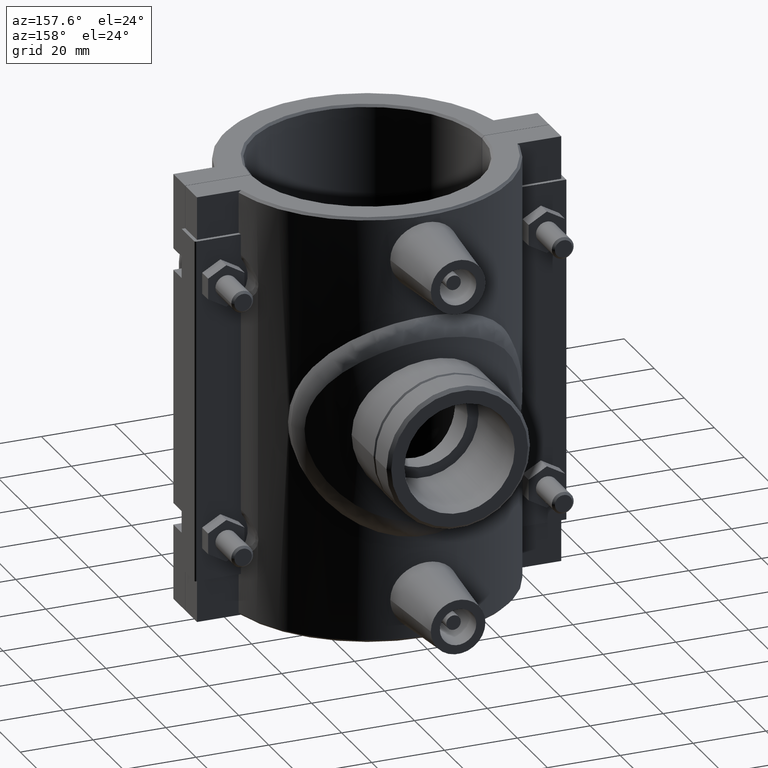
[diagram: clean part render]
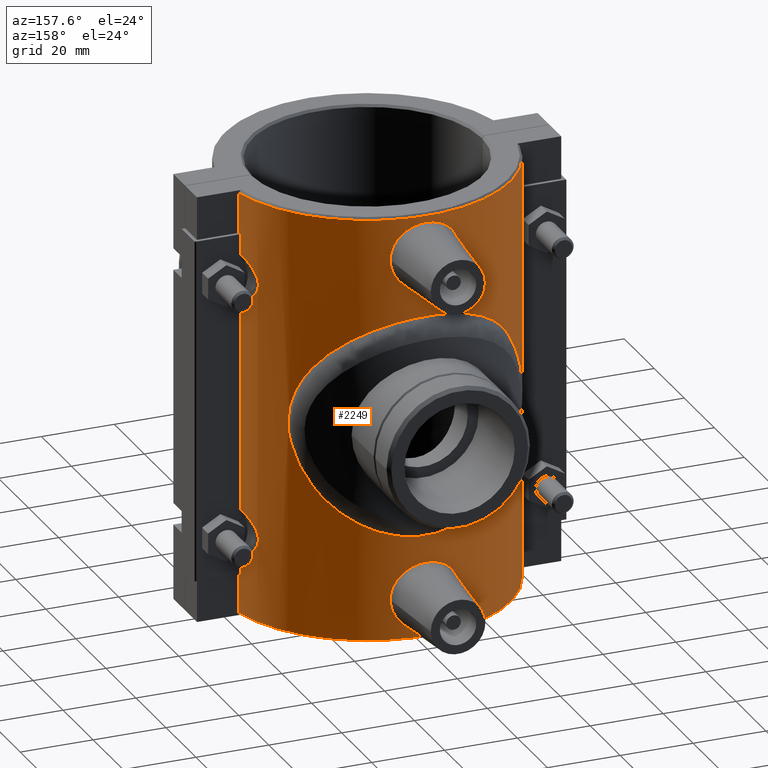
[diagram: same view with one face highlighted and labeled with its STEP entity id]
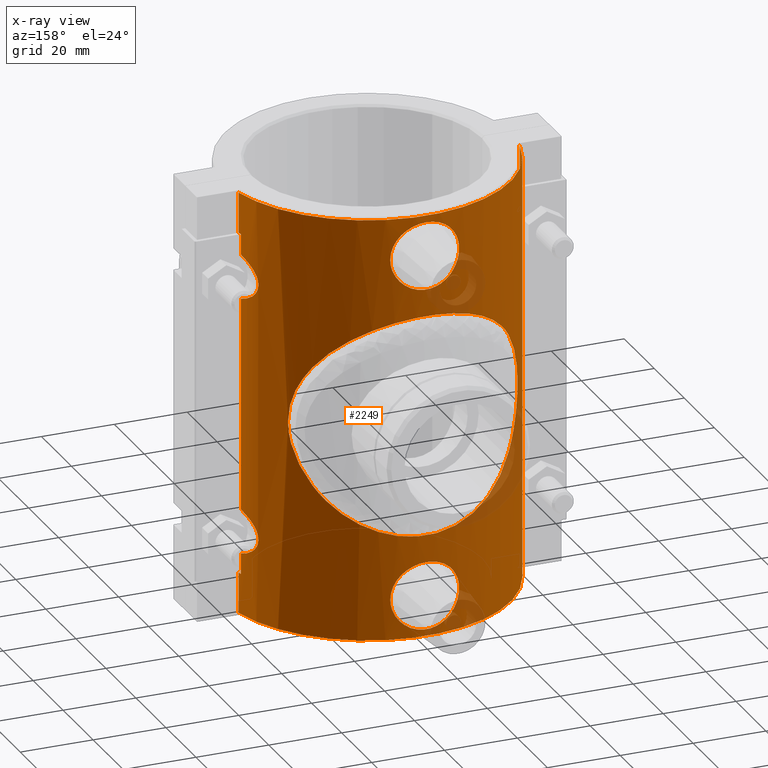
[diagram: x-ray of the same camera — body ghosted, the highlighted face saturated]
A machine part, auxiliary view. The second image highlights one B-rep face of the part: STEP entity #2249.
The next image is the same camera in x-ray: the body ghosted, the highlighted face saturated — about 6% of this face is hidden behind the body in this view.
In plain terms, the highlighted cylindrical surface (partial cylindrical patch) has radius 39.375 mm, axis along (0, 0, 1).
Its self-contained STEP definition (entity closure, byte-faithful):
#65=CYLINDRICAL_SURFACE('',#2409,39.375);
#104=FACE_BOUND('',#374,.T.);
#105=FACE_BOUND('',#375,.T.);
#106=FACE_BOUND('',#376,.T.);
#142=B_SPLINE_CURVE_WITH_KNOTS('',3,(#3314,#3315,#3316,#3317,#3318,#3319,
#3320,#3321,#3322,#3323),.UNSPECIFIED.,.F.,.F.,(4,1,1,1,1,1,1,4),(-2.23679704661286,
-1.96871094438914,-1.70062484216541,-1.43253873994169,-1.16445263771797,
-0.896366535494243,-0.628280433270519,-0.360194331046795),.UNSPECIFIED.);
#144=B_SPLINE_CURVE_WITH_KNOTS('',3,(#3383,#3384,#3385,#3386,#3387,#3388,
#3389,#3390,#3391,#3392),.UNSPECIFIED.,.F.,.F.,(4,1,1,1,1,1,1,4),(-2.23679704543051,
-1.96871094329826,-1.70062484116601,-1.43253873903376,-1.16445263690152,
-0.896366534769269,-0.628280432637021,-0.360194330504774),.UNSPECIFIED.);
#150=B_SPLINE_CURVE_WITH_KNOTS('',3,(#3587,#3588,#3589,#3590,#3591,#3592,
#3593,#3594,#3595,#3596),.UNSPECIFIED.,.F.,.F.,(4,1,1,1,1,1,1,4),(-2.23609285524702,
-1.96800676434559,-1.69992067344417,-1.43183458254275,-1.16374849164133,
-0.895662400739906,-0.627576309838484,-0.359490218937062),.UNSPECIFIED.);
#151=B_SPLINE_CURVE_WITH_KNOTS('',3,(#3641,#3642,#3643,#3644,#3645,#3646,
#3647,#3648,#3649,#3650,#3651,#3652,#3653,#3654,#3655,#3656,#3657,#3658,
#3659,#3660,#3661,#3662,#3663,#3664,#3665,#3666,#3667,#3668,#3669,#3670,
#3671,#3672,#3673,#3674),.UNSPECIFIED.,.T.,.F.,(4,2,2,2,2,2,2,2,2,2,2,2,
2,2,2,2,4),(0.,0.356014998471949,0.712029996943897,1.06709419230473,1.42215838766557,
1.7772225830264,2.13228677838723,2.48830177685918,2.84431677533113,3.20033177380308,
3.55634677227503,3.91141096763586,4.2664751629967,4.62153935835753,4.97660355371836,
5.33261855219031,5.68863355066226),.UNSPECIFIED.);
#152=B_SPLINE_CURVE_WITH_KNOTS('',3,(#3693,#3694,#3695,#3696,#3697,#3698,
#3699,#3700,#3701,#3702,#3703,#3704,#3705,#3706,#3707,#3708,#3709,#3710,
#3711,#3712,#3713,#3714,#3715,#3716,#3717,#3718,#3719,#3720,#3721,#3722,
#3723,#3724,#3725,#3726),.UNSPECIFIED.,.T.,.F.,(4,2,2,2,2,2,2,2,2,2,2,2,
2,2,2,2,4),(0.,0.356014998471948,0.712029996943897,1.06709419230473,1.42215838766556,
1.7772225830264,2.13228677838723,2.48830177685918,2.84431677533113,3.20033177380308,
3.55634677227503,3.91141096763586,4.2664751629967,4.62153935835753,4.97660355371836,
5.33261855219031,5.68863355066226),.UNSPECIFIED.);
#153=B_SPLINE_CURVE_WITH_KNOTS('',3,(#3755,#3756,#3757,#3758,#3759,#3760,
#3761,#3762,#3763,#3764),.UNSPECIFIED.,.F.,.F.,(4,1,1,1,1,1,1,4),(-2.23679704488359,
-1.96871094279365,-1.70062484070371,-1.43253873861376,-1.16445263652382,
-0.896366534433878,-0.628280432343935,-0.360194330253992),.UNSPECIFIED.);
#154=B_SPLINE_CURVE_WITH_KNOTS('',3,(#3772,#3773,#3774,#3775,#3776,#3777,
#3778,#3779),.UNSPECIFIED.,.F.,.F.,(4,2,2,4),(0.,0.645981179518012,1.29196235903602,
1.76864767389931),.UNSPECIFIED.);
#155=B_SPLINE_CURVE_WITH_KNOTS('',3,(#3781,#3782,#3783,#3784,#3785,#3786,
#3787,#3788,#3789,#3790,#3791,#3792,#3793,#3794,#3795,#3796,#3797,#3798,
#3799,#3800),.UNSPECIFIED.,.F.,.F.,(4,2,2,2,2,2,2,2,2,4),(0.,1.16348620632321,
2.26330441970973,2.8075191023437,3.13775493906589,3.43652113412912,3.82240357718107,
4.56678057629902,5.42160531668723,6.41168342017933),.UNSPECIFIED.);
#156=B_SPLINE_CURVE_WITH_KNOTS('',3,(#3802,#3803,#3804,#3805,#3806,#3807,
#3808,#3809,#3810,#3811,#3812,#3813,#3814,#3815),.UNSPECIFIED.,.F.,.F.,
(4,2,2,2,2,2,4),(8.40632199688605,8.88300731174924,9.52898849126725,10.1749696707853,
10.8209508503033,11.4669320298213,11.9436173446845),.UNSPECIFIED.);
#157=B_SPLINE_CURVE_WITH_KNOTS('',3,(#3817,#3818,#3819,#3820,#3821,#3822,
#3823,#3824,#3825,#3826,#3827,#3828,#3829,#3830,#3831,#3832,#3833,#3834,
#3835,#3836),.UNSPECIFIED.,.F.,.F.,(4,2,2,2,2,2,2,2,2,4),(0.,1.16349116454586,
2.26325169019806,2.80758392138209,3.13778661780516,3.43657147133626,3.82241099950025,
4.5667290381499,5.42156965460748,6.41168233159869),.UNSPECIFIED.);
#158=B_SPLINE_CURVE_WITH_KNOTS('',3,(#3837,#3838,#3839,#3840,#3841,#3842,
#3843,#3844),.UNSPECIFIED.,.F.,.F.,(4,2,2,4),(18.5812916676713,19.0579769825345,
19.7039581620525,20.3499393415705),.UNSPECIFIED.);
#218=FACE_OUTER_BOUND('',#373,.T.);
#373=EDGE_LOOP('',(#1717,#1718,#1719,#1720,#1721,#1722,#1723,#1724,#1725,
#1726,#1727,#1728,#1729,#1730,#1731,#1732,#1733,#1734,#1735,#1736));
#374=EDGE_LOOP('',(#1737));
#375=EDGE_LOOP('',(#1738));
#376=EDGE_LOOP('',(#1739,#1740,#1741,#1742,#1743));
#503=LINE('',#3184,#694);
#505=LINE('',#3187,#696);
#506=LINE('',#3207,#697);
#527=LINE('',#3331,#718);
#545=LINE('',#3434,#736);
#546=LINE('',#3454,#737);
#547=LINE('',#3474,#738);
#573=LINE('',#3530,#764);
#599=LINE('',#3766,#790);
#600=LINE('',#3769,#791);
#694=VECTOR('',#2568,5.66749808671728);
#696=VECTOR('',#2570,5.66749808671728);
#697=VECTOR('',#2573,58.5349961734345);
#718=VECTOR('',#2606,11.17);
#736=VECTOR('',#2646,5.66749808671728);
#737=VECTOR('',#2649,58.5349961734345);
#738=VECTOR('',#2652,5.66749808671728);
#764=VECTOR('',#2692,11.17);
#790=VECTOR('',#2800,11.17);
#791=VECTOR('',#2803,11.17);
#875=CIRCLE('',#2339,39.375);
#876=CIRCLE('',#2341,39.375);
#883=CIRCLE('',#2364,39.375);
#884=CIRCLE('',#2367,39.375);
#897=CIRCLE('',#2410,39.375);
#898=CIRCLE('',#2411,39.375);
#953=VERTEX_POINT('',#3157);
#954=VERTEX_POINT('',#3158);
#959=VERTEX_POINT('',#3170);
#960=VERTEX_POINT('',#3171);
#965=VERTEX_POINT('',#3183);
#966=VERTEX_POINT('',#3186);
#969=VERTEX_POINT('',#3198);
#970=VERTEX_POINT('',#3206);
#990=VERTEX_POINT('',#3327);
#1003=VERTEX_POINT('',#3431);
#1004=VERTEX_POINT('',#3433);
#1007=VERTEX_POINT('',#3445);
#1008=VERTEX_POINT('',#3453);
#1011=VERTEX_POINT('',#3465);
#1012=VERTEX_POINT('',#3473);
#1028=VERTEX_POINT('',#3507);
#1030=VERTEX_POINT('',#3515);
#1035=VERTEX_POINT('',#3529);
#1050=VERTEX_POINT('',#3640);
#1056=VERTEX_POINT('',#3692);
#1063=VERTEX_POINT('',#3765);
#1064=VERTEX_POINT('',#3767);
#1065=VERTEX_POINT('',#3770);
#1066=VERTEX_POINT('',#3771);
#1067=VERTEX_POINT('',#3780);
#1068=VERTEX_POINT('',#3801);
#1069=VERTEX_POINT('',#3816);
#1169=EDGE_CURVE('',#953,#954,#875,.T.);
#1175=EDGE_CURVE('',#959,#960,#876,.T.);
#1181=EDGE_CURVE('',#954,#965,#503,.T.);
#1183=EDGE_CURVE('',#966,#959,#505,.T.);
#1187=EDGE_CURVE('',#970,#969,#506,.T.);
#1211=EDGE_CURVE('',#970,#965,#142,.T.);
#1214=EDGE_CURVE('',#990,#960,#527,.T.);
#1216=EDGE_CURVE('',#966,#969,#144,.T.);
#1236=EDGE_CURVE('',#1004,#1003,#545,.T.);
#1240=EDGE_CURVE('',#1008,#1007,#546,.T.);
#1244=EDGE_CURVE('',#1012,#1011,#547,.T.);
#1262=EDGE_CURVE('',#1003,#1028,#883,.T.);
#1265=EDGE_CURVE('',#1030,#1012,#884,.T.);
#1272=EDGE_CURVE('',#1035,#1030,#573,.T.);
#1276=EDGE_CURVE('',#1008,#1011,#150,.T.);
#1296=EDGE_CURVE('',#1050,#1050,#151,.T.);
#1302=EDGE_CURVE('',#1056,#1056,#152,.T.);
#1315=EDGE_CURVE('',#1035,#990,#897,.T.);
#1316=EDGE_CURVE('',#1004,#1007,#153,.T.);
#1317=EDGE_CURVE('',#1028,#1063,#599,.T.);
#1318=EDGE_CURVE('',#1064,#1063,#898,.T.);
#1319=EDGE_CURVE('',#953,#1064,#600,.T.);
#1320=EDGE_CURVE('',#1065,#1066,#154,.T.);
#1321=EDGE_CURVE('',#1066,#1067,#155,.T.);
#1322=EDGE_CURVE('',#1067,#1068,#156,.T.);
#1323=EDGE_CURVE('',#1068,#1069,#157,.T.);
#1324=EDGE_CURVE('',#1069,#1065,#158,.T.);
#1717=ORIENTED_EDGE('',*,*,#1181,.T.);
#1718=ORIENTED_EDGE('',*,*,#1211,.F.);
#1719=ORIENTED_EDGE('',*,*,#1187,.T.);
#1720=ORIENTED_EDGE('',*,*,#1216,.F.);
#1721=ORIENTED_EDGE('',*,*,#1183,.T.);
#1722=ORIENTED_EDGE('',*,*,#1175,.T.);
#1723=ORIENTED_EDGE('',*,*,#1214,.F.);
#1724=ORIENTED_EDGE('',*,*,#1315,.F.);
#1725=ORIENTED_EDGE('',*,*,#1272,.T.);
#1726=ORIENTED_EDGE('',*,*,#1265,.T.);
#1727=ORIENTED_EDGE('',*,*,#1244,.T.);
#1728=ORIENTED_EDGE('',*,*,#1276,.F.);
#1729=ORIENTED_EDGE('',*,*,#1240,.T.);
#1730=ORIENTED_EDGE('',*,*,#1316,.F.);
#1731=ORIENTED_EDGE('',*,*,#1236,.T.);
#1732=ORIENTED_EDGE('',*,*,#1262,.T.);
#1733=ORIENTED_EDGE('',*,*,#1317,.T.);
#1734=ORIENTED_EDGE('',*,*,#1318,.F.);
#1735=ORIENTED_EDGE('',*,*,#1319,.F.);
#1736=ORIENTED_EDGE('',*,*,#1169,.T.);
#1737=ORIENTED_EDGE('',*,*,#1296,.T.);
#1738=ORIENTED_EDGE('',*,*,#1302,.T.);
#1739=ORIENTED_EDGE('',*,*,#1320,.T.);
#1740=ORIENTED_EDGE('',*,*,#1321,.T.);
#1741=ORIENTED_EDGE('',*,*,#1322,.T.);
#1742=ORIENTED_EDGE('',*,*,#1323,.T.);
#1743=ORIENTED_EDGE('',*,*,#1324,.T.);
#2249=ADVANCED_FACE('',(#218,#104,#105,#106),#65,.T.);
#2339=AXIS2_PLACEMENT_3D('',#3159,#2550,#2551);
#2341=AXIS2_PLACEMENT_3D('',#3172,#2559,#2560);
#2364=AXIS2_PLACEMENT_3D('',#3509,#2672,#2673);
#2367=AXIS2_PLACEMENT_3D('',#3516,#2680,#2681);
#2409=AXIS2_PLACEMENT_3D('',#3753,#2796,#2797);
#2410=AXIS2_PLACEMENT_3D('',#3754,#2798,#2799);
#2411=AXIS2_PLACEMENT_3D('',#3768,#2801,#2802);
#2550=DIRECTION('center_axis',(0.,0.,-1.));
#2551=DIRECTION('ref_axis',(1.,0.,0.));
#2559=DIRECTION('center_axis',(0.,0.,1.));
#2560=DIRECTION('ref_axis',(1.,0.,0.));
#2568=DIRECTION('',(0.,0.,1.));
#2570=DIRECTION('',(0.,0.,1.));
#2573=DIRECTION('',(0.,0.,1.));
#2606=DIRECTION('',(0.,0.,-1.));
#2646=DIRECTION('',(0.,0.,-1.));
#2649=DIRECTION('',(0.,0.,-1.));
#2652=DIRECTION('',(0.,0.,-1.));
#2672=DIRECTION('center_axis',(0.,0.,-1.));
#2673=DIRECTION('ref_axis',(1.,0.,0.));
#2680=DIRECTION('center_axis',(0.,0.,1.));
#2681=DIRECTION('ref_axis',(1.,0.,0.));
#2692=DIRECTION('',(0.,0.,-1.));
#2796=DIRECTION('center_axis',(0.,0.,1.));
#2797=DIRECTION('ref_axis',(1.,0.,0.));
#2798=DIRECTION('center_axis',(0.,0.,1.));
#2799=DIRECTION('ref_axis',(1.,0.,0.));
#2800=DIRECTION('',(0.,0.,-1.));
#2801=DIRECTION('center_axis',(0.,0.,-1.));
#2802=DIRECTION('ref_axis',(1.,0.,0.));
#2803=DIRECTION('',(0.,0.,-1.));
#3157=CARTESIAN_POINT('',(-38.5794634488351,7.87499999999999,-47.2));
#3158=CARTESIAN_POINT('',(-38.3617648186316,8.87499999999999,-47.2));
#3159=CARTESIAN_POINT('Origin',(0.,0.,-47.2));
#3170=CARTESIAN_POINT('',(-38.3617648186316,8.87499999999999,47.2));
#3171=CARTESIAN_POINT('',(-38.5794634488351,7.87499999999999,47.2));
#3172=CARTESIAN_POINT('Origin',(0.,0.,47.2));
#3183=CARTESIAN_POINT('',(-38.3617648186318,8.87499999999956,-41.5325019132827));
#3184=CARTESIAN_POINT('',(-38.3617648186316,8.87499999999999,0.));
#3186=CARTESIAN_POINT('',(-38.3617648186318,8.87499999999956,41.5325019132827));
#3187=CARTESIAN_POINT('',(-38.3617648186316,8.87499999999999,0.));
#3198=CARTESIAN_POINT('',(-38.3617648186318,8.87499999999956,29.2674980867173));
#3206=CARTESIAN_POINT('',(-38.3617648186318,8.87499999999956,-29.2674980867173));
#3207=CARTESIAN_POINT('',(-38.3617648186316,8.87499999999999,0.));
#3314=CARTESIAN_POINT('Ctrl Pts',(-38.3617648186317,8.8749999999995,-29.2674980867174));
#3315=CARTESIAN_POINT('Ctrl Pts',(-38.1532387728328,9.7763439016894,-29.5398859696479));
#3316=CARTESIAN_POINT('Ctrl Pts',(-37.6795406994699,11.5271730571094,-30.2103196623145));
#3317=CARTESIAN_POINT('Ctrl Pts',(-36.8950726308391,13.8148468887016,-31.7241798095908));
#3318=CARTESIAN_POINT('Ctrl Pts',(-36.2284522761401,15.4295263626613,-33.9879877213974));
#3319=CARTESIAN_POINT('Ctrl Pts',(-36.2245338176189,15.4362747750041,-36.8171381414192));
#3320=CARTESIAN_POINT('Ctrl Pts',(-36.8917757079543,13.8204970105827,-39.0742706705837));
#3321=CARTESIAN_POINT('Ctrl Pts',(-37.6777684709211,11.5302183310091,-40.5894169961475));
#3322=CARTESIAN_POINT('Ctrl Pts',(-38.1532387728328,9.77634390168942,-41.2601140303521));
#3323=CARTESIAN_POINT('Ctrl Pts',(-38.3617648186317,8.8749999999995,-41.5325019132826));
#3327=CARTESIAN_POINT('',(-38.5794634488351,7.875,58.37));
#3331=CARTESIAN_POINT('',(-38.5794634488351,7.875,0.));
#3383=CARTESIAN_POINT('Ctrl Pts',(-38.3617648186317,8.8749999999995,41.5325019132826));
#3384=CARTESIAN_POINT('Ctrl Pts',(-38.1532387763912,9.77634388630819,41.2601140350003));
#3385=CARTESIAN_POINT('Ctrl Pts',(-37.6777684672854,11.5302183437461,40.5894169905642));
#3386=CARTESIAN_POINT('Ctrl Pts',(-36.8917757065733,13.8204970134078,39.0742706672572));
#3387=CARTESIAN_POINT('Ctrl Pts',(-36.2245338174657,15.4362747756134,36.8171381407191));
#3388=CARTESIAN_POINT('Ctrl Pts',(-36.228452275591,15.4295263642557,33.987987726037));
#3389=CARTESIAN_POINT('Ctrl Pts',(-36.8950726292815,13.8148468918939,31.7241798133507));
#3390=CARTESIAN_POINT('Ctrl Pts',(-37.679540696668,11.5271730681516,30.2103196664156));
#3391=CARTESIAN_POINT('Ctrl Pts',(-38.1532387763912,9.77634388630819,29.5398859649997));
#3392=CARTESIAN_POINT('Ctrl Pts',(-38.3617648186317,8.8749999999995,29.2674980867174));
#3431=CARTESIAN_POINT('',(38.3617648186316,8.87499999999999,-47.2));
#3433=CARTESIAN_POINT('',(38.3617648186318,8.87499999999956,-41.5325019132827));
#3434=CARTESIAN_POINT('',(38.3617648186316,8.87499999999999,0.));
#3445=CARTESIAN_POINT('',(38.3617648186318,8.87499999999956,-29.2674980867173));
#3453=CARTESIAN_POINT('',(38.3617648186318,8.87499999999956,29.2674980867173));
#3454=CARTESIAN_POINT('',(38.3617648186316,8.87499999999999,0.));
#3465=CARTESIAN_POINT('',(38.3617648186318,8.87499999999956,41.5325019132827));
#3473=CARTESIAN_POINT('',(38.3617648186316,8.87499999999999,47.2));
#3474=CARTESIAN_POINT('',(38.3617648186316,8.87499999999999,0.));
#3507=CARTESIAN_POINT('',(38.5794634488351,7.87499999999999,-47.2));
#3509=CARTESIAN_POINT('Origin',(0.,0.,-47.2));
#3515=CARTESIAN_POINT('',(38.5794634488351,7.87499999999999,47.2));
#3516=CARTESIAN_POINT('Origin',(0.,0.,47.2));
#3529=CARTESIAN_POINT('',(38.5794634488351,7.87499999999999,58.37));
#3530=CARTESIAN_POINT('',(38.5794634488351,7.87499999999999,0.));
#3587=CARTESIAN_POINT('Ctrl Pts',(38.3617648186317,8.8749999999995,29.2674980867174));
#3588=CARTESIAN_POINT('Ctrl Pts',(38.1532388333755,9.77634363999648,29.5398858905638));
#3589=CARTESIAN_POINT('Ctrl Pts',(37.6771605191043,11.5312642110856,30.2102998012306));
#3590=CARTESIAN_POINT('Ctrl Pts',(36.8921396789315,13.8198729314372,31.7264222502999));
#3591=CARTESIAN_POINT('Ctrl Pts',(36.2246883133286,15.4360080026379,33.9828098704173));
#3592=CARTESIAN_POINT('Ctrl Pts',(36.2285403039292,15.4293752376368,36.812145980274));
#3593=CARTESIAN_POINT('Ctrl Pts',(36.8951278874751,13.8147515853218,39.0758201964971));
#3594=CARTESIAN_POINT('Ctrl Pts',(37.6795661046194,11.5271296631764,40.5897123228409));
#3595=CARTESIAN_POINT('Ctrl Pts',(38.1532388333755,9.77634363999647,41.2601141094362));
#3596=CARTESIAN_POINT('Ctrl Pts',(38.3617648186317,8.87499999999951,41.5325019132826));
#3640=CARTESIAN_POINT('',(9.44885677958251,38.2244650787809,47.2));
#3641=CARTESIAN_POINT('Ctrl Pts',(-9.44885677958251,38.2244650787809,47.2));
#3642=CARTESIAN_POINT('Ctrl Pts',(-9.44885677958251,38.2244650787809,46.0132833384269));
#3643=CARTESIAN_POINT('Ctrl Pts',(-9.20641468561252,38.2868444369384,44.752476197349));
#3644=CARTESIAN_POINT('Ctrl Pts',(-8.23143659111838,38.5082325071646,42.443271999074));
#3645=CARTESIAN_POINT('Ctrl Pts',(-7.49923403788687,38.6636599373278,41.3943922368591));
#3646=CARTESIAN_POINT('Ctrl Pts',(-5.8213504145831,38.95157397346,39.7451610866894));
#3647=CARTESIAN_POINT('Ctrl Pts',(-4.76306580802813,39.1031880173406,39.0320549957885));
#3648=CARTESIAN_POINT('Ctrl Pts',(-2.44433362832232,39.3162986767516,38.0852741919757));
#3649=CARTESIAN_POINT('Ctrl Pts',(-1.18354731786945,39.375,37.8518019830149));
#3650=CARTESIAN_POINT('Ctrl Pts',(1.18354731786945,39.375,37.8518019830149));
#3651=CARTESIAN_POINT('Ctrl Pts',(2.44433362832233,39.3162986767516,38.0852741919757));
#3652=CARTESIAN_POINT('Ctrl Pts',(4.76306580802814,39.1031880173406,39.0320549957885));
#3653=CARTESIAN_POINT('Ctrl Pts',(5.8213504145831,38.95157397346,39.7451610866894));
#3654=CARTESIAN_POINT('Ctrl Pts',(7.49923403788688,38.6636599373278,41.3943922368591));
#3655=CARTESIAN_POINT('Ctrl Pts',(8.23143659111838,38.5082325071646,42.443271999074));
#3656=CARTESIAN_POINT('Ctrl Pts',(9.20641468561252,38.2868444369384,44.7524761973491));
#3657=CARTESIAN_POINT('Ctrl Pts',(9.44885677958251,38.2244650787809,46.0132833384269));
#3658=CARTESIAN_POINT('Ctrl Pts',(9.44885677958251,38.2244650787809,48.3867166615732));
#3659=CARTESIAN_POINT('Ctrl Pts',(9.20641468561253,38.2868444369384,49.647523802651));
#3660=CARTESIAN_POINT('Ctrl Pts',(8.23143659111839,38.5082325071646,51.956728000926));
#3661=CARTESIAN_POINT('Ctrl Pts',(7.49923403788688,38.6636599373278,53.0056077631409));
#3662=CARTESIAN_POINT('Ctrl Pts',(5.8213504145831,38.95157397346,54.6548389133106));
#3663=CARTESIAN_POINT('Ctrl Pts',(4.76306580802813,39.1031880173406,55.3679450042115));
#3664=CARTESIAN_POINT('Ctrl Pts',(2.44433362832232,39.3162986767516,56.3147258080244));
#3665=CARTESIAN_POINT('Ctrl Pts',(1.18354731786945,39.375,56.5481980169852));
#3666=CARTESIAN_POINT('Ctrl Pts',(-1.18354731786944,39.375,56.5481980169852));
#3667=CARTESIAN_POINT('Ctrl Pts',(-2.44433362832232,39.3162986767516,56.3147258080244));
#3668=CARTESIAN_POINT('Ctrl Pts',(-4.76306580802813,39.1031880173406,55.3679450042115));
#3669=CARTESIAN_POINT('Ctrl Pts',(-5.8213504145831,38.95157397346,54.6548389133106));
#3670=CARTESIAN_POINT('Ctrl Pts',(-7.49923403788688,38.6636599373278,53.0056077631409));
#3671=CARTESIAN_POINT('Ctrl Pts',(-8.23143659111838,38.5082325071646,51.956728000926));
#3672=CARTESIAN_POINT('Ctrl Pts',(-9.20641468561252,38.2868444369384,49.647523802651));
#3673=CARTESIAN_POINT('Ctrl Pts',(-9.44885677958251,38.2244650787809,48.3867166615732));
#3674=CARTESIAN_POINT('Ctrl Pts',(-9.44885677958251,38.2244650787809,47.2));
#3692=CARTESIAN_POINT('',(9.44885677958251,38.2244650787809,-47.2));
#3693=CARTESIAN_POINT('Ctrl Pts',(9.44885677958251,38.2244650787809,-47.2));
#3694=CARTESIAN_POINT('Ctrl Pts',(9.44885677958251,38.2244650787809,-46.0132833384269));
#3695=CARTESIAN_POINT('Ctrl Pts',(9.20641468561252,38.2868444369384,-44.7524761973491));
#3696=CARTESIAN_POINT('Ctrl Pts',(8.23143659111838,38.5082325071646,-42.443271999074));
#3697=CARTESIAN_POINT('Ctrl Pts',(7.49923403788688,38.6636599373278,-41.3943922368591));
#3698=CARTESIAN_POINT('Ctrl Pts',(5.8213504145831,38.95157397346,-39.7451610866894));
#3699=CARTESIAN_POINT('Ctrl Pts',(4.76306580802814,39.1031880173406,-39.0320549957885));
#3700=CARTESIAN_POINT('Ctrl Pts',(2.44433362832233,39.3162986767516,-38.0852741919757));
#3701=CARTESIAN_POINT('Ctrl Pts',(1.18354731786945,39.375,-37.8518019830149));
#3702=CARTESIAN_POINT('Ctrl Pts',(-1.18354731786945,39.375,-37.8518019830149));
#3703=CARTESIAN_POINT('Ctrl Pts',(-2.44433362832232,39.3162986767516,-38.0852741919757));
#3704=CARTESIAN_POINT('Ctrl Pts',(-4.76306580802814,39.1031880173406,-39.0320549957885));
#3705=CARTESIAN_POINT('Ctrl Pts',(-5.8213504145831,38.95157397346,-39.7451610866894));
#3706=CARTESIAN_POINT('Ctrl Pts',(-7.49923403788688,38.6636599373278,-41.3943922368591));
#3707=CARTESIAN_POINT('Ctrl Pts',(-8.23143659111838,38.5082325071646,-42.443271999074));
#3708=CARTESIAN_POINT('Ctrl Pts',(-9.20641468561252,38.2868444369384,-44.7524761973491));
#3709=CARTESIAN_POINT('Ctrl Pts',(-9.44885677958251,38.2244650787809,-46.0132833384269));
#3710=CARTESIAN_POINT('Ctrl Pts',(-9.44885677958251,38.2244650787809,-48.3867166615732));
#3711=CARTESIAN_POINT('Ctrl Pts',(-9.20641468561252,38.2868444369384,-49.647523802651));
#3712=CARTESIAN_POINT('Ctrl Pts',(-8.23143659111838,38.5082325071646,-51.956728000926));
#3713=CARTESIAN_POINT('Ctrl Pts',(-7.49923403788688,38.6636599373278,-53.0056077631409));
#3714=CARTESIAN_POINT('Ctrl Pts',(-5.8213504145831,38.95157397346,-54.6548389133106));
#3715=CARTESIAN_POINT('Ctrl Pts',(-4.76306580802813,39.1031880173406,-55.3679450042115));
#3716=CARTESIAN_POINT('Ctrl Pts',(-2.44433362832232,39.3162986767516,-56.3147258080244));
#3717=CARTESIAN_POINT('Ctrl Pts',(-1.18354731786945,39.375,-56.5481980169852));
#3718=CARTESIAN_POINT('Ctrl Pts',(1.18354731786944,39.375,-56.5481980169852));
#3719=CARTESIAN_POINT('Ctrl Pts',(2.44433362832232,39.3162986767516,-56.3147258080244));
#3720=CARTESIAN_POINT('Ctrl Pts',(4.76306580802813,39.1031880173406,-55.3679450042115));
#3721=CARTESIAN_POINT('Ctrl Pts',(5.8213504145831,38.95157397346,-54.6548389133106));
#3722=CARTESIAN_POINT('Ctrl Pts',(7.49923403788687,38.6636599373278,-53.0056077631409));
#3723=CARTESIAN_POINT('Ctrl Pts',(8.23143659111838,38.5082325071646,-51.9567280009261));
#3724=CARTESIAN_POINT('Ctrl Pts',(9.20641468561252,38.2868444369384,-49.647523802651));
#3725=CARTESIAN_POINT('Ctrl Pts',(9.44885677958251,38.2244650787809,-48.3867166615732));
#3726=CARTESIAN_POINT('Ctrl Pts',(9.44885677958251,38.2244650787809,-47.2));
#3753=CARTESIAN_POINT('Origin',(0.,0.,0.));
#3754=CARTESIAN_POINT('Origin',(0.,0.,58.37));
#3755=CARTESIAN_POINT('Ctrl Pts',(38.3617648186317,8.8749999999995,-41.5325019132826));
#3756=CARTESIAN_POINT('Ctrl Pts',(38.1532387780374,9.77634387919272,-41.2601140371506));
#3757=CARTESIAN_POINT('Ctrl Pts',(37.6795406953721,11.5271730732592,-40.5896803316875));
#3758=CARTESIAN_POINT('Ctrl Pts',(36.8950726285609,13.8148468933708,-39.07582018491));
#3759=CARTESIAN_POINT('Ctrl Pts',(36.228452275337,15.4295263649932,-36.8120122718165));
#3760=CARTESIAN_POINT('Ctrl Pts',(36.2245338173948,15.4362747758953,-33.9828618596049));
#3761=CARTESIAN_POINT('Ctrl Pts',(36.8917757059344,13.8204970147147,-31.7257293342817));
#3762=CARTESIAN_POINT('Ctrl Pts',(37.6777684656037,11.5302183496378,-30.2105830120185));
#3763=CARTESIAN_POINT('Ctrl Pts',(38.1532387780374,9.7763438791927,-29.5398859628494));
#3764=CARTESIAN_POINT('Ctrl Pts',(38.3617648186317,8.8749999999995,-29.2674980867174));
#3765=CARTESIAN_POINT('',(38.5794634488351,7.87499999999999,-58.37));
#3766=CARTESIAN_POINT('',(38.5794634488351,7.87499999999999,0.));
#3767=CARTESIAN_POINT('',(-38.5794634488351,7.875,-58.37));
#3768=CARTESIAN_POINT('Origin',(0.,0.,-58.37));
#3769=CARTESIAN_POINT('',(-38.5794634488351,7.875,0.));
#3770=CARTESIAN_POINT('',(31.5,23.625,1.11022302462516E-15));
#3771=CARTESIAN_POINT('',(26.9187318609177,28.7362575851486,16.3594582734275));
#3772=CARTESIAN_POINT('Ctrl Pts',(31.5,23.625,1.11022302462516E-15));
#3773=CARTESIAN_POINT('Ctrl Pts',(31.5,23.625,2.15327059839337));
#3774=CARTESIAN_POINT('Ctrl Pts',(31.2780467196378,23.9279039689149,4.28852470908759));
#3775=CARTESIAN_POINT('Ctrl Pts',(30.4259590803895,25.0024359872944,8.42429040913865));
#3776=CARTESIAN_POINT('Ctrl Pts',(29.7960912566457,25.7683869400545,10.4263298110625));
#3777=CARTESIAN_POINT('Ctrl Pts',(28.3914817075653,27.2963547860409,13.7294005441814));
#3778=CARTESIAN_POINT('Ctrl Pts',(27.6974656799735,28.0067775265824,15.0780877955162));
#3779=CARTESIAN_POINT('Ctrl Pts',(26.9187318609177,28.7362575851487,16.3594582734274));
#3780=CARTESIAN_POINT('',(-26.9187318609182,28.7362575851483,16.3594582734267));
#3781=CARTESIAN_POINT('Ctrl Pts',(26.9187318609179,28.7362575851484,16.3594582734271));
#3782=CARTESIAN_POINT('Ctrl Pts',(25.1075197957008,30.4329131702528,19.3397239467736));
#3783=CARTESIAN_POINT('Ctrl Pts',(22.7079269700689,32.3543209201565,22.0194025256257));
#3784=CARTESIAN_POINT('Ctrl Pts',(16.8585127451055,35.7345582435431,26.3505377891985));
#3785=CARTESIAN_POINT('Ctrl Pts',(13.5727981854966,37.1515244484902,27.9776933772116));
#3786=CARTESIAN_POINT('Ctrl Pts',(8.14824236475228,38.5673543153814,29.5742033725196));
#3787=CARTESIAN_POINT('Ctrl Pts',(6.28884869507743,38.9166882570087,29.9589916740709));
#3788=CARTESIAN_POINT('Ctrl Pts',(3.23078689007856,39.2594336804441,30.3354199928792));
#3789=CARTESIAN_POINT('Ctrl Pts',(2.06571963951946,39.3381907417112,30.4213434478583));
#3790=CARTESIAN_POINT('Ctrl Pts',(-0.162960638217514,39.388897656078,30.4767147631299));
#3791=CARTESIAN_POINT('Ctrl Pts',(-1.22186673718899,39.3702309454479,30.456380212008));
#3792=CARTESIAN_POINT('Ctrl Pts',(-3.64020265404604,39.2301366570375,30.3031917510595));
#3793=CARTESIAN_POINT('Ctrl Pts',(-4.9904656479513,39.0806905846304,30.1397223080439));
#3794=CARTESIAN_POINT('Ctrl Pts',(-8.88480487012735,38.4474039383904,29.4395927542055));
#3795=CARTESIAN_POINT('Ctrl Pts',(-11.3373948041858,37.7868769746663,28.7044835331252));
#3796=CARTESIAN_POINT('Ctrl Pts',(-16.2717862212075,35.9655981232211,26.5834644127264));
#3797=CARTESIAN_POINT('Ctrl Pts',(-18.6673322333193,34.7579897946622,25.1330632988056));
#3798=CARTESIAN_POINT('Ctrl Pts',(-23.2305412016014,31.9224858302187,21.4035915009918));
#3799=CARTESIAN_POINT('Ctrl Pts',(-25.2882698095978,30.2635953269834,19.0423081597329));
#3800=CARTESIAN_POINT('Ctrl Pts',(-26.918731860918,28.7362575851484,16.359458273427));
#3801=CARTESIAN_POINT('',(-26.9187318609179,28.7362575851485,-16.3594582734271));
#3802=CARTESIAN_POINT('Ctrl Pts',(-26.9187318609182,28.7362575851482,16.3594582734267));
#3803=CARTESIAN_POINT('Ctrl Pts',(-27.6974656799737,28.0067775265821,15.0780877955157));
#3804=CARTESIAN_POINT('Ctrl Pts',(-28.3914817075654,27.2963547860408,13.7294005441811));
#3805=CARTESIAN_POINT('Ctrl Pts',(-29.7960912566457,25.7683869400545,10.4263298110625));
#3806=CARTESIAN_POINT('Ctrl Pts',(-30.4259590803895,25.0024359872944,8.42429040913865));
#3807=CARTESIAN_POINT('Ctrl Pts',(-31.2780467196378,23.9279039689149,4.2885247090876));
#3808=CARTESIAN_POINT('Ctrl Pts',(-31.5,23.625,2.15327059839337));
#3809=CARTESIAN_POINT('Ctrl Pts',(-31.5,23.625,-2.15327059839337));
#3810=CARTESIAN_POINT('Ctrl Pts',(-31.2780467196378,23.9279039689149,-4.28852470908759));
#3811=CARTESIAN_POINT('Ctrl Pts',(-30.4259590803895,25.0024359872944,-8.42429040913865));
#3812=CARTESIAN_POINT('Ctrl Pts',(-29.7960912566457,25.7683869400545,-10.4263298110625));
#3813=CARTESIAN_POINT('Ctrl Pts',(-28.3914817075654,27.2963547860409,-13.7294005441812));
#3814=CARTESIAN_POINT('Ctrl Pts',(-27.6974656799736,28.0067775265823,-15.078087795516));
#3815=CARTESIAN_POINT('Ctrl Pts',(-26.9187318609179,28.7362575851485,-16.3594582734271));
#3816=CARTESIAN_POINT('',(26.918731860918,28.7362575851484,-16.3594582734269));
#3817=CARTESIAN_POINT('Ctrl Pts',(-26.918731860918,28.7362575851484,-16.359458273427));
#3818=CARTESIAN_POINT('Ctrl Pts',(-25.1075120771798,30.4329204005888,-19.3397366472428));
#3819=CARTESIAN_POINT('Ctrl Pts',(-22.7079065146559,32.3543372428927,-22.0194253529859));
#3820=CARTESIAN_POINT('Ctrl Pts',(-16.8586188511121,35.7344926719116,-26.3504519634409));
#3821=CARTESIAN_POINT('Ctrl Pts',(-13.5730938917071,37.1513950824426,-27.9775437058883));
#3822=CARTESIAN_POINT('Ctrl Pts',(-8.14838074241099,38.567344022301,-29.5741936445018));
#3823=CARTESIAN_POINT('Ctrl Pts',(-6.28858354214404,38.9167516983198,-29.9590617929142));
#3824=CARTESIAN_POINT('Ctrl Pts',(-3.23021290364877,39.2594775455611,-30.33546789998));
#3825=CARTESIAN_POINT('Ctrl Pts',(-2.06526012978407,39.338211388797,-30.4213659997121));
#3826=CARTESIAN_POINT('Ctrl Pts',(0.163370198584181,39.3888977489934,-30.4767148596189));
#3827=CARTESIAN_POINT('Ctrl Pts',(1.22234216716818,39.3702179382464,-30.4563660399506));
#3828=CARTESIAN_POINT('Ctrl Pts',(3.64058862415083,39.2300955199836,-30.303146703312));
#3829=CARTESIAN_POINT('Ctrl Pts',(4.99069907648466,39.0806556011334,-30.1396837147458));
#3830=CARTESIAN_POINT('Ctrl Pts',(8.88468493557873,38.447417700566,-29.4396078094639));
#3831=CARTESIAN_POINT('Ctrl Pts',(11.3370884197295,37.7869572202475,-28.704572043046));
#3832=CARTESIAN_POINT('Ctrl Pts',(16.2713973388486,35.9657793692233,-26.5836811626286));
#3833=CARTESIAN_POINT('Ctrl Pts',(18.6670142642517,34.7581650035448,-25.133282234551));
#3834=CARTESIAN_POINT('Ctrl Pts',(23.2303985669664,31.9226003702732,-21.403755485469));
#3835=CARTESIAN_POINT('Ctrl Pts',(25.2882133117724,30.2636482514051,-19.0424011242913));
#3836=CARTESIAN_POINT('Ctrl Pts',(26.918731860918,28.7362575851484,-16.359458273427));
#3837=CARTESIAN_POINT('Ctrl Pts',(26.918731860918,28.7362575851484,-16.3594582734269));
#3838=CARTESIAN_POINT('Ctrl Pts',(27.6974656799736,28.0067775265822,-15.0780877955159));
#3839=CARTESIAN_POINT('Ctrl Pts',(28.3914817075654,27.2963547860408,-13.7294005441812));
#3840=CARTESIAN_POINT('Ctrl Pts',(29.7960912566457,25.7683869400545,-10.4263298110625));
#3841=CARTESIAN_POINT('Ctrl Pts',(30.4259590803895,25.0024359872944,-8.42429040913864));
#3842=CARTESIAN_POINT('Ctrl Pts',(31.2780467196378,23.9279039689149,-4.28852470908758));
#3843=CARTESIAN_POINT('Ctrl Pts',(31.5,23.625,-2.15327059839337));
#3844=CARTESIAN_POINT('Ctrl Pts',(31.5,23.625,-5.55111512312578E-16));